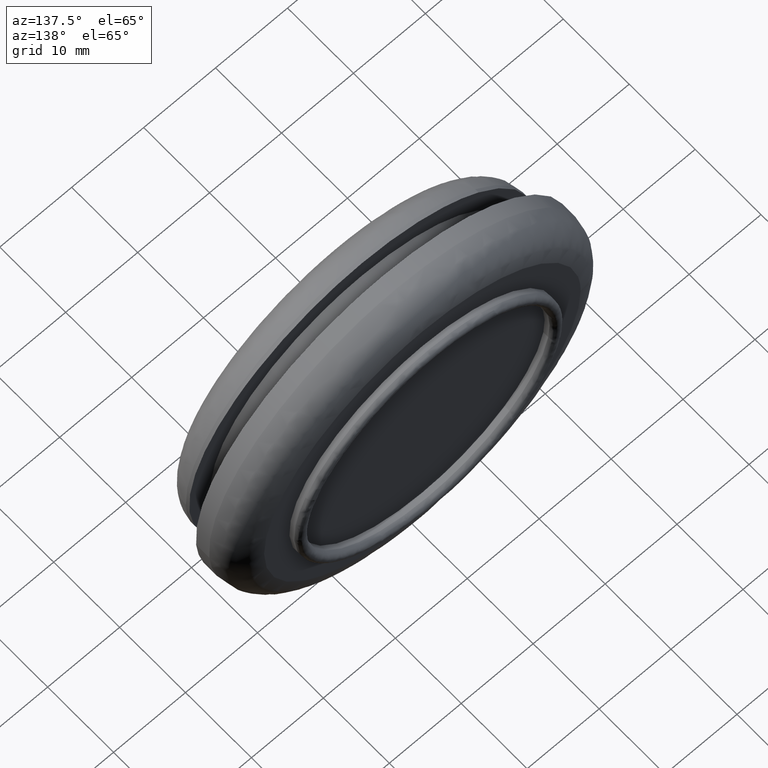
[diagram: clean part render]
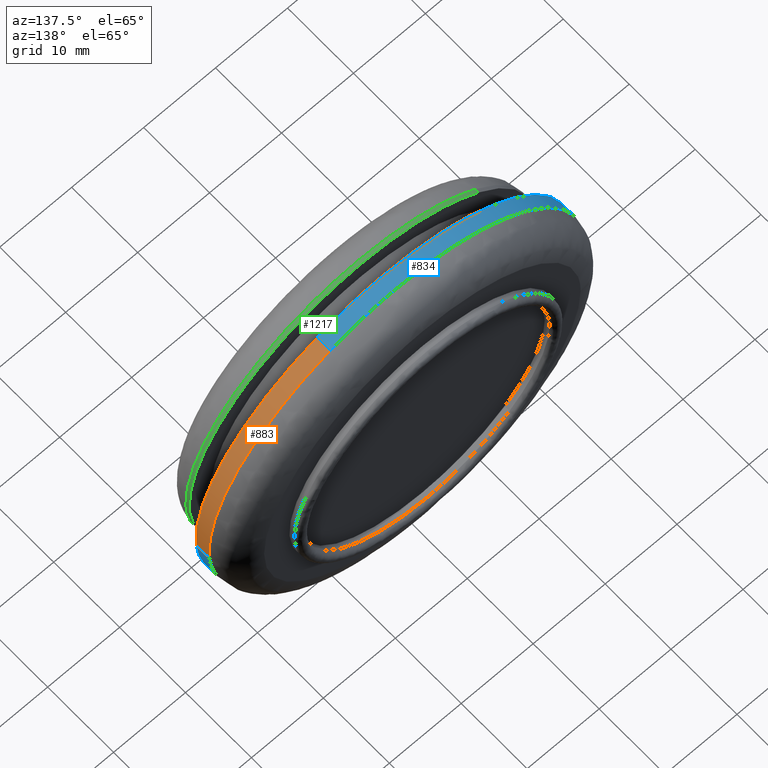
[diagram: same view with three faces highlighted in distinct colors, each labeled with its STEP entity id]
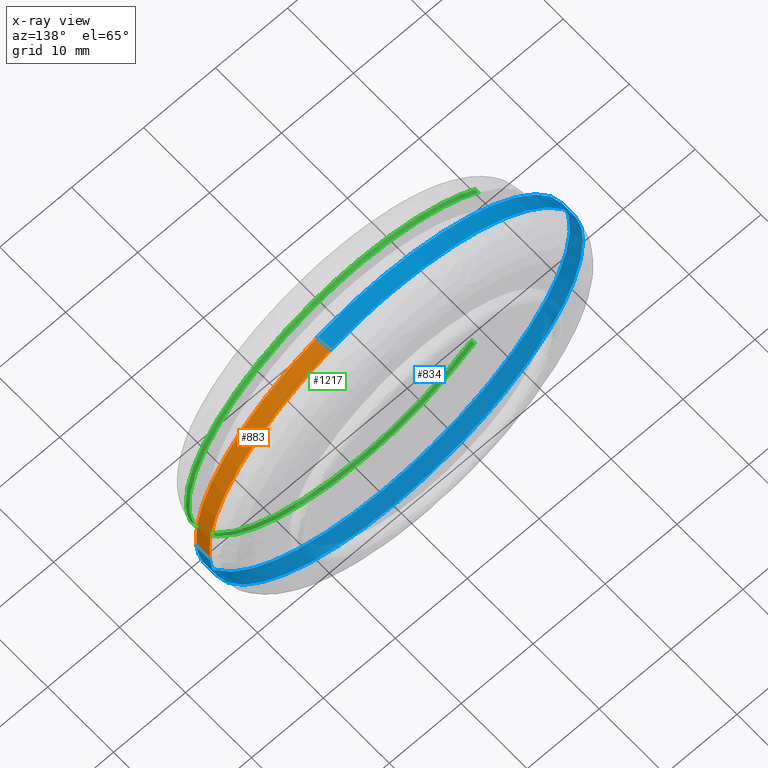
[diagram: x-ray of the same camera — body ghosted, the three highlighted faces saturated]
A machine part, auxiliary view with three faces highlighted in distinct colors.
The next image is the same camera in x-ray (body ghosted, the three faces saturated) — at least one of them is partly hidden behind the body in this view.
Their STEP definitions:

[orange] entity #883 — the highlighted face is a freeform B-spline surface patch.
#696=CARTESIAN_POINT('',(9.142066125791089,9.199999999999770,24.339733502067379));
#697=VERTEX_POINT('',#696);
#758=CARTESIAN_POINT('',(25.951505774424589,9.200000000000223,-1.587245425172213));
#759=VERTEX_POINT('',#758);
#773=CARTESIAN_POINT('',(25.951505762184439,7.199999999999790,-1.587245625301178));
#774=VERTEX_POINT('',#773);
#775=CARTESIAN_POINT('',(25.951505774424589,9.200000000000223,-1.587245425172213));
#776=CARTESIAN_POINT('',(25.951505762184439,7.199999999999790,-1.587245625301178));
#777=QUASI_UNIFORM_CURVE('',1,(#775,#776),.UNSPECIFIED.,.F.,.U.);
#778=EDGE_CURVE('',#759,#774,#777,.T.);
#812=CARTESIAN_POINT('',(9.142066140340663,7.199999999999790,24.339733496602520));
#813=VERTEX_POINT('',#812);
#827=CARTESIAN_POINT('',(9.142066125791089,9.199999999999770,24.339733502067379));
#828=CARTESIAN_POINT('',(9.142066140340663,7.199999999999790,24.339733496602520));
#829=QUASI_UNIFORM_CURVE('',1,(#827,#828),.UNSPECIFIED.,.F.,.U.);
#830=EDGE_CURVE('',#697,#813,#829,.T.);
#835=CARTESIAN_POINT('',(25.951504758968529,9.250000000028628,-1.587262027906267));
#836=CARTESIAN_POINT('',(27.124167794602876,9.250000000028626,17.585609126879710));
#837=CARTESIAN_POINT('',(9.142067334180860,9.250000000028628,24.339733048193093));
#838=CARTESIAN_POINT('',(25.951504758968529,7.148749999999068,-1.587262027906267));
#839=CARTESIAN_POINT('',(27.124167794602876,7.148749999999068,17.585609126879710));
#840=CARTESIAN_POINT('',(9.142067334180860,7.148749999999069,24.339733048193093));
#848=(BOUNDED_SURFACE()B_SPLINE_SURFACE(2,1,((#835,#838),(#836,#839),(#837,#840)),.UNSPECIFIED.,.F.,.F.,.U.)B_SPLINE_SURFACE_WITH_KNOTS((3,3),(2,2),(0.0,34.227666821052793),(0.0,2.101250000029560),.UNSPECIFIED.)GEOMETRIC_REPRESENTATION_ITEM()RATIONAL_B_SPLINE_SURFACE(((1.0,1.0),(0.765685424949238,0.765685424949238),(0.906274169979695,0.906274169979695)))REPRESENTATION_ITEM('')SURFACE());
#849=CARTESIAN_POINT('',(25.951505774424593,9.200000000000223,-1.587245425172213));
#850=CARTESIAN_POINT('',(26.000000000000007,9.199999999999781,-0.794363521120460));
#851=CARTESIAN_POINT('',(26.0,9.199999999999781,-2.939055E-016));
#852=CARTESIAN_POINT('',(26.000000000000007,9.199999999999781,18.007850443070854));
#853=CARTESIAN_POINT('',(9.142066125791109,9.199999999999779,24.339733502067414));
#861=(BOUNDED_CURVE()B_SPLINE_CURVE(2,(#849,#850,#851,#852,#853),.UNSPECIFIED.,.F.,.U.)B_SPLINE_CURVE_WITH_KNOTS((3,2,3),(0.239333072630507,0.250000000000000,0.440284178740616),.UNSPECIFIED.)CURVE()GEOMETRIC_REPRESENTATION_ITEM()RATIONAL_B_SPLINE_CURVE((0.976072278256969,0.987502917231600,1.0,0.777068217597547,0.893499564232153))REPRESENTATION_ITEM(''));
#862=EDGE_CURVE('',#759,#697,#861,.T.);
#863=ORIENTED_EDGE('',*,*,#862,.T.);
#864=ORIENTED_EDGE('',*,*,#830,.T.);
#865=CARTESIAN_POINT('',(25.951505762184439,7.199999999999791,-1.587245625301177));
#866=CARTESIAN_POINT('',(26.0,7.199999999999791,-0.794363621465503));
#867=CARTESIAN_POINT('',(26.0,7.199999999999790,-2.939055E-016));
#868=CARTESIAN_POINT('',(26.000000000000007,7.199999999999791,18.007850431572031));
#869=CARTESIAN_POINT('',(9.142066140340678,7.199999999999789,24.339733496602555));
#877=(BOUNDED_CURVE()B_SPLINE_CURVE(2,(#865,#866,#867,#868,#869),.UNSPECIFIED.,.F.,.U.)B_SPLINE_CURVE_WITH_KNOTS((3,2,3),(0.239333071299887,0.250000000000000,0.440284178646198),.UNSPECIFIED.)CURVE()GEOMETRIC_REPRESENTATION_ITEM()RATIONAL_B_SPLINE_CURVE((0.976072275405192,0.987502915672681,1.0,0.777068217708164,0.893499564116609))REPRESENTATION_ITEM(''));
#878=EDGE_CURVE('',#774,#813,#877,.T.);
#879=ORIENTED_EDGE('',*,*,#878,.F.);
#880=ORIENTED_EDGE('',*,*,#778,.F.);
#881=EDGE_LOOP('',(#863,#864,#879,#880));
#882=FACE_OUTER_BOUND('',#881,.T.);
#883=ADVANCED_FACE('',(#882),#848,.T.);

[blue] entity #834 — the highlighted face is a freeform B-spline surface patch.
#670=CARTESIAN_POINT('',(9.142067334180860,9.250000000028628,24.339733048193093));
#671=CARTESIAN_POINT('',(5.485725744600599,9.250000000028628,25.713064503493914));
#672=CARTESIAN_POINT('',(1.587262027906267,9.250000000028628,25.951504758968529));
#673=CARTESIAN_POINT('',(-24.364242731062269,9.250000000028628,27.538766786874792));
#674=CARTESIAN_POINT('',(-25.951504758968529,9.250000000028628,1.587262027906267));
#675=CARTESIAN_POINT('',(-27.538766786874792,9.250000000028628,-24.364242731062269));
#676=CARTESIAN_POINT('',(-1.587262027906267,9.250000000028628,-25.951504758968529));
#677=CARTESIAN_POINT('',(24.364242731062269,9.250000000028628,-27.538766786874792));
#678=CARTESIAN_POINT('',(25.951504758968529,9.250000000028628,-1.587262027906267));
#679=CARTESIAN_POINT('',(9.142067334180860,7.148749999999069,24.339733048193093));
#680=CARTESIAN_POINT('',(5.485725744600599,7.148749999999069,25.713064503493914));
#681=CARTESIAN_POINT('',(1.587262027906267,7.148749999999068,25.951504758968529));
#682=CARTESIAN_POINT('',(-24.364242731062269,7.148749999999069,27.538766786874792));
#683=CARTESIAN_POINT('',(-25.951504758968529,7.148749999999068,1.587262027906267));
#684=CARTESIAN_POINT('',(-27.538766786874792,7.148749999999069,-24.364242731062269));
#685=CARTESIAN_POINT('',(-1.587262027906267,7.148749999999068,-25.951504758968529));
#686=CARTESIAN_POINT('',(24.364242731062269,7.148749999999069,-27.538766786874792));
#687=CARTESIAN_POINT('',(25.951504758968529,7.148749999999068,-1.587262027906267));
#695=(BOUNDED_SURFACE()B_SPLINE_SURFACE(2,1,((#670,#679),(#671,#680),(#672,#681),(#673,#682),(#674,#683),(#675,#684),(#676,#685),(#677,#686),(#678,#687)),.UNSPECIFIED.,.F.,.F.,.U.)B_SPLINE_SURFACE_WITH_KNOTS((3,2,2,2,3),(2,2),(0.0,8.615642097360375,51.693852584162251,94.772063070964137,137.850273557766000),(0.0,2.101250000029560),.UNSPECIFIED.)GEOMETRIC_REPRESENTATION_ITEM()RATIONAL_B_SPLINE_SURFACE(((0.906274169979695,0.906274169979695),(0.941421356237309,0.941421356237309),(1.0,1.0),(0.707106781186548,0.707106781186548),(1.0,1.0),(0.707106781186548,0.707106781186548),(1.0,1.0),(0.707106781186548,0.707106781186548),(1.0,1.0)))REPRESENTATION_ITEM('')SURFACE());
#696=CARTESIAN_POINT('',(9.142066125791089,9.199999999999770,24.339733502067379));
#697=VERTEX_POINT('',#696);
#698=CARTESIAN_POINT('',(0.0,9.199999999999781,26.0));
#699=VERTEX_POINT('',#698);
#700=CARTESIAN_POINT('',(9.142066125791109,9.199999999999779,24.339733502067414));
#701=CARTESIAN_POINT('',(4.721791371041068,9.199999999999779,26.000000000000004));
#702=CARTESIAN_POINT('',(0.0,9.199999999999781,26.0));
#710=(BOUNDED_CURVE()B_SPLINE_CURVE(2,(#700,#701,#702),.UNSPECIFIED.,.F.,.U.)B_SPLINE_CURVE_WITH_KNOTS((3,3),(0.440284178740616,0.500000000000000),.UNSPECIFIED.)CURVE()GEOMETRIC_REPRESENTATION_ITEM()RATIONAL_B_SPLINE_CURVE((0.893499564232153,0.930038563589001,1.0))REPRESENTATION_ITEM(''));
#711=EDGE_CURVE('',#697,#699,#710,.T.);
#712=ORIENTED_EDGE('',*,*,#711,.T.);
#713=CARTESIAN_POINT('',(-25.999999999999989,9.200000000026588,1.921379E-017));
#714=VERTEX_POINT('',#713);
#715=CARTESIAN_POINT('',(0.0,9.199999999999781,26.0));
#716=CARTESIAN_POINT('',(-25.999999999999876,9.199999999999781,26.0));
#717=CARTESIAN_POINT('',(-25.999999999999993,9.200000000026588,1.921379E-017));
#725=(BOUNDED_CURVE()B_SPLINE_CURVE(2,(#715,#716,#717),.UNSPECIFIED.,.F.,.U.)B_SPLINE_CURVE_WITH_KNOTS((3,3),(0.500000000000000,0.749999999999999),.UNSPECIFIED.)CURVE()GEOMETRIC_REPRESENTATION_ITEM()RATIONAL_B_SPLINE_CURVE((1.0,0.707106781186548,0.999999999999998))REPRESENTATION_ITEM(''));
#726=EDGE_CURVE('',#699,#714,#725,.T.);
#727=ORIENTED_EDGE('',*,*,#726,.T.);
#728=CARTESIAN_POINT('',(-9.185851133165627,9.200000000027924,-24.323242772280992));
#729=VERTEX_POINT('',#728);
#730=CARTESIAN_POINT('',(-25.999999999999989,9.200000000026588,1.921379E-017));
#731=CARTESIAN_POINT('',(-26.000000000000004,9.199999999999781,-17.973256059255309));
#732=CARTESIAN_POINT('',(-9.185851133165627,9.200000000027924,-24.323242772280988));
#740=(BOUNDED_CURVE()B_SPLINE_CURVE(2,(#730,#731,#732),.UNSPECIFIED.,.F.,.U.)B_SPLINE_CURVE_WITH_KNOTS((3,3),(0.750000000000000,0.939999999999961),.UNSPECIFIED.)CURVE()GEOMETRIC_REPRESENTATION_ITEM()RATIONAL_B_SPLINE_CURVE((1.0,0.777401153701821,0.893152553776805))REPRESENTATION_ITEM(''));
#741=EDGE_CURVE('',#714,#729,#740,.T.);
#742=ORIENTED_EDGE('',*,*,#741,.T.);
#743=CARTESIAN_POINT('',(0.0,9.199999999999781,-26.0));
#744=VERTEX_POINT('',#743);
#745=CARTESIAN_POINT('',(-9.185851133165627,9.200000000027924,-24.323242772280988));
#746=CARTESIAN_POINT('',(-4.745960639761153,9.199999999999781,-26.0));
#747=CARTESIAN_POINT('',(0.0,9.199999999999781,-26.0));
#755=(BOUNDED_CURVE()B_SPLINE_CURVE(2,(#745,#746,#747),.UNSPECIFIED.,.F.,.U.)B_SPLINE_CURVE_WITH_KNOTS((3,3),(0.939999999999961,1.0),.UNSPECIFIED.)CURVE()GEOMETRIC_REPRESENTATION_ITEM()RATIONAL_B_SPLINE_CURVE((0.893152553776805,0.929705627484725,1.0))REPRESENTATION_ITEM(''));
#756=EDGE_CURVE('',#729,#744,#755,.T.);
#757=ORIENTED_EDGE('',*,*,#756,.T.);
#758=CARTESIAN_POINT('',(25.951505774424589,9.200000000000223,-1.587245425172213));
#759=VERTEX_POINT('',#758);
#760=CARTESIAN_POINT('',(0.0,9.199999999999781,-26.0));
#761=CARTESIAN_POINT('',(24.458373416270785,9.199999999999781,-25.999999999999996));
#762=CARTESIAN_POINT('',(25.951505774424593,9.200000000000223,-1.587245425172213));
#770=(BOUNDED_CURVE()B_SPLINE_CURVE(2,(#760,#761,#762),.UNSPECIFIED.,.F.,.U.)B_SPLINE_CURVE_WITH_KNOTS((3,3),(0.0,0.239333072630507),.UNSPECIFIED.)CURVE()GEOMETRIC_REPRESENTATION_ITEM()RATIONAL_B_SPLINE_CURVE((1.0,0.719603863954947,0.976072278256969))REPRESENTATION_ITEM(''));
#771=EDGE_CURVE('',#744,#759,#770,.T.);
#772=ORIENTED_EDGE('',*,*,#771,.T.);
#773=CARTESIAN_POINT('',(25.951505762184439,7.199999999999790,-1.587245625301178));
#774=VERTEX_POINT('',#773);
#775=CARTESIAN_POINT('',(25.951505774424589,9.200000000000223,-1.587245425172213));
#776=CARTESIAN_POINT('',(25.951505762184439,7.199999999999790,-1.587245625301178));
#777=QUASI_UNIFORM_CURVE('',1,(#775,#776),.UNSPECIFIED.,.F.,.U.);
#778=EDGE_CURVE('',#759,#774,#777,.T.);
#779=ORIENTED_EDGE('',*,*,#778,.T.);
#780=CARTESIAN_POINT('',(0.0,7.199999999999790,-26.0));
#781=VERTEX_POINT('',#780);
#782=CARTESIAN_POINT('',(0.0,7.199999999999790,-26.0));
#783=CARTESIAN_POINT('',(24.458373227303884,7.199999999999790,-25.999999999999996));
#784=CARTESIAN_POINT('',(25.951505762184439,7.199999999999791,-1.587245625301177));
#792=(BOUNDED_CURVE()B_SPLINE_CURVE(2,(#782,#783,#784),.UNSPECIFIED.,.F.,.U.)B_SPLINE_CURVE_WITH_KNOTS((3,3),(0.0,0.239333071299887),.UNSPECIFIED.)CURVE()GEOMETRIC_REPRESENTATION_ITEM()RATIONAL_B_SPLINE_CURVE((1.0,0.719603865513867,0.976072275405192))REPRESENTATION_ITEM(''));
#793=EDGE_CURVE('',#781,#774,#792,.T.);
#794=ORIENTED_EDGE('',*,*,#793,.F.);
#795=CARTESIAN_POINT('',(0.0,7.199999999999790,26.0));
#796=VERTEX_POINT('',#795);
#797=CARTESIAN_POINT('',(0.0,7.199999999999790,26.0));
#798=CARTESIAN_POINT('',(-26.000000000000007,7.199999999999789,26.000000000000007));
#799=CARTESIAN_POINT('',(-26.0,7.199999999999790,-2.939055E-016));
#800=CARTESIAN_POINT('',(-26.000000000000007,7.199999999999789,-26.000000000000007));
#801=CARTESIAN_POINT('',(0.0,7.199999999999790,-26.0));
#809=(BOUNDED_CURVE()B_SPLINE_CURVE(2,(#797,#798,#799,#800,#801),.UNSPECIFIED.,.F.,.U.)B_SPLINE_CURVE_WITH_KNOTS((3,2,3),(0.500000000000000,0.750000000000000,1.0),.UNSPECIFIED.)CURVE()GEOMETRIC_REPRESENTATION_ITEM()RATIONAL_B_SPLINE_CURVE((1.0,0.707106781186547,1.0,0.707106781186547,1.0))REPRESENTATION_ITEM(''));
#810=EDGE_CURVE('',#796,#781,#809,.T.);
#811=ORIENTED_EDGE('',*,*,#810,.F.);
#812=CARTESIAN_POINT('',(9.142066140340663,7.199999999999790,24.339733496602520));
#813=VERTEX_POINT('',#812);
#814=CARTESIAN_POINT('',(9.142066140340678,7.199999999999789,24.339733496602555));
#815=CARTESIAN_POINT('',(4.721791379068379,7.199999999999790,26.000000000000004));
#816=CARTESIAN_POINT('',(0.0,7.199999999999790,26.0));
#824=(BOUNDED_CURVE()B_SPLINE_CURVE(2,(#814,#815,#816),.UNSPECIFIED.,.F.,.U.)B_SPLINE_CURVE_WITH_KNOTS((3,3),(0.440284178646198,0.500000000000000),.UNSPECIFIED.)CURVE()GEOMETRIC_REPRESENTATION_ITEM()RATIONAL_B_SPLINE_CURVE((0.893499564116609,0.930038563478383,1.0))REPRESENTATION_ITEM(''));
#825=EDGE_CURVE('',#813,#796,#824,.T.);
#826=ORIENTED_EDGE('',*,*,#825,.F.);
#827=CARTESIAN_POINT('',(9.142066125791089,9.199999999999770,24.339733502067379));
#828=CARTESIAN_POINT('',(9.142066140340663,7.199999999999790,24.339733496602520));
#829=QUASI_UNIFORM_CURVE('',1,(#827,#828),.UNSPECIFIED.,.F.,.U.);
#830=EDGE_CURVE('',#697,#813,#829,.T.);
#831=ORIENTED_EDGE('',*,*,#830,.F.);
#832=EDGE_LOOP('',(#712,#727,#742,#757,#772,#779,#794,#811,#826,#831));
#833=FACE_OUTER_BOUND('',#832,.T.);
#834=ADVANCED_FACE('',(#833),#695,.T.);

[green] entity #1217 — the highlighted face is a freeform B-spline surface patch.
#1070=CARTESIAN_POINT('',(-15.704151768064911,4.012500000004274,-18.148818618455127));
#1071=CARTESIAN_POINT('',(0.457220591482891,4.012500000004275,-32.133235436443712));
#1072=CARTESIAN_POINT('',(16.214164982775849,4.012500000004275,-17.694656083442968));
#1073=CARTESIAN_POINT('',(33.908821066218827,4.012500000004275,-1.480491100667127));
#1074=CARTESIAN_POINT('',(17.694656083442968,4.012500000004275,16.214164982775849));
#1075=CARTESIAN_POINT('',(1.480491100667127,4.012500000004275,33.908821066218827));
#1076=CARTESIAN_POINT('',(-16.214164982775849,4.012500000004275,17.694656083442968));
#1077=CARTESIAN_POINT('',(-15.704151768064911,3.487187499824632,-18.148818618455127));
#1078=CARTESIAN_POINT('',(0.457220591482891,3.487187499824632,-32.133235436443712));
#1079=CARTESIAN_POINT('',(16.214164982775849,3.487187499824632,-17.694656083442968));
#1080=CARTESIAN_POINT('',(33.908821066218827,3.487187499824632,-1.480491100667127));
#1081=CARTESIAN_POINT('',(17.694656083442968,3.487187499824632,16.214164982775849));
#1082=CARTESIAN_POINT('',(1.480491100667127,3.487187499824632,33.908821066218827));
#1083=CARTESIAN_POINT('',(-16.214164982775849,3.487187499824632,17.694656083442968));
#1091=(BOUNDED_SURFACE()B_SPLINE_SURFACE(2,1,((#1070,#1077),(#1071,#1078),(#1072,#1079),(#1073,#1080),(#1074,#1081),(#1075,#1082),(#1076,#1083)),.UNSPECIFIED.,.F.,.F.,.U.)B_SPLINE_SURFACE_WITH_KNOTS((3,2,2,3),(2,2),(0.0,36.583341828791752,76.347843816608872,116.112345804426000),(0.0,1.0),.UNSPECIFIED.)GEOMETRIC_REPRESENTATION_ITEM()RATIONAL_B_SPLINE_SURFACE(((0.956886118190660,0.956886118190660),(0.730538238691624,0.730538238691624),(1.0,1.0),(0.707106781186548,0.707106781186548),(1.0,1.0),(0.707106781186548,0.707106781186548),(1.0,1.0)))REPRESENTATION_ITEM('')SURFACE());
#1092=CARTESIAN_POINT('',(-15.704150975296370,4.000000000000154,-18.148819304436781));
#1093=VERTEX_POINT('',#1092);
#1094=CARTESIAN_POINT('',(0.0,4.0,-24.0));
#1095=VERTEX_POINT('',#1094);
#1096=CARTESIAN_POINT('',(-15.704150975296365,4.000000000000154,-18.148819304436781));
#1097=CARTESIAN_POINT('',(-8.942115808388468,4.000000000000000,-23.999999999999996));
#1098=CARTESIAN_POINT('',(0.0,4.0,-24.0));
#1106=(BOUNDED_CURVE()B_SPLINE_CURVE(2,(#1096,#1097,#1098),.UNSPECIFIED.,.F.,.U.)B_SPLINE_CURVE_WITH_KNOTS((3,3),(0.885882126548224,1.0),.UNSPECIFIED.)CURVE()GEOMETRIC_REPRESENTATION_ITEM()RATIONAL_B_SPLINE_CURVE((0.854663298228968,0.866302594882253,1.0))REPRESENTATION_ITEM(''));
#1107=EDGE_CURVE('',#1093,#1095,#1106,.T.);
#1108=ORIENTED_EDGE('',*,*,#1107,.T.);
#1109=CARTESIAN_POINT('',(0.0,4.0,24.0));
#1110=VERTEX_POINT('',#1109);
#1111=CARTESIAN_POINT('',(0.0,4.0,-24.0));
#1112=CARTESIAN_POINT('',(23.999999999999996,4.000000000000000,-23.999999999999996));
#1113=CARTESIAN_POINT('',(24.0,4.0,-2.939055E-016));
#1114=CARTESIAN_POINT('',(23.999999999999996,4.000000000000000,23.999999999999996));
#1115=CARTESIAN_POINT('',(0.0,4.0,24.0));
#1123=(BOUNDED_CURVE()B_SPLINE_CURVE(2,(#1111,#1112,#1113,#1114,#1115),.UNSPECIFIED.,.F.,.U.)B_SPLINE_CURVE_WITH_KNOTS((3,2,3),(0.0,0.250000000000000,0.500000000000000),.UNSPECIFIED.)CURVE()GEOMETRIC_REPRESENTATION_ITEM()RATIONAL_B_SPLINE_CURVE((1.0,0.707106781186548,1.0,0.707106781186548,1.0))REPRESENTATION_ITEM(''));
#1124=EDGE_CURVE('',#1095,#1110,#1123,.T.);
#1125=ORIENTED_EDGE('',*,*,#1124,.T.);
#1126=CARTESIAN_POINT('',(-16.214164032176718,4.0,17.694656954506499));
#1127=VERTEX_POINT('',#1126);
#1128=CARTESIAN_POINT('',(0.0,4.0,24.0));
#1129=CARTESIAN_POINT('',(-9.333088822312083,4.0,24.0));
#1130=CARTESIAN_POINT('',(-16.214164032176736,4.0,17.694656954506534));
#1138=(BOUNDED_CURVE()B_SPLINE_CURVE(2,(#1128,#1129,#1130),.UNSPECIFIED.,.F.,.U.)B_SPLINE_CURVE_WITH_KNOTS((3,3),(0.500000000000000,0.618415200974131),.UNSPECIFIED.)CURVE()GEOMETRIC_REPRESENTATION_ITEM()RATIONAL_B_SPLINE_CURVE((1.0,0.861267962520980,0.853959781838990))REPRESENTATION_ITEM(''));
#1139=EDGE_CURVE('',#1110,#1127,#1138,.T.);
#1140=ORIENTED_EDGE('',*,*,#1139,.T.);
#1141=CARTESIAN_POINT('',(-16.214163988861721,3.499999999953968,17.694656994196169));
#1142=VERTEX_POINT('',#1141);
#1143=CARTESIAN_POINT('',(-16.214164032176718,4.0,17.694656954506499));
#1144=CARTESIAN_POINT('',(-16.214163988861721,3.499999999953968,17.694656994196169));
#1145=QUASI_UNIFORM_CURVE('',1,(#1143,#1144),.UNSPECIFIED.,.F.,.U.);
#1146=EDGE_CURVE('',#1127,#1142,#1145,.T.);
#1147=ORIENTED_EDGE('',*,*,#1146,.T.);
#1148=CARTESIAN_POINT('',(0.0,3.499999999999800,24.0));
#1149=VERTEX_POINT('',#1148);
#1150=CARTESIAN_POINT('',(0.0,3.499999999999800,24.0));
#1151=CARTESIAN_POINT('',(-9.333088788494331,3.499999999999800,23.999999999999996));
#1152=CARTESIAN_POINT('',(-16.214163988861724,3.499999999953968,17.694656994196166));
#1160=(BOUNDED_CURVE()B_SPLINE_CURVE(2,(#1150,#1151,#1152),.UNSPECIFIED.,.F.,.U.)B_SPLINE_CURVE_WITH_KNOTS((3,3),(0.500000000000000,0.618415200604588),.UNSPECIFIED.)CURVE()GEOMETRIC_REPRESENTATION_ITEM()RATIONAL_B_SPLINE_CURVE((1.0,0.861267962953927,0.853959781884604))REPRESENTATION_ITEM(''));
#1161=EDGE_CURVE('',#1149,#1142,#1160,.T.);
#1162=ORIENTED_EDGE('',*,*,#1161,.F.);
#1163=CARTESIAN_POINT('',(23.992420542798961,3.499999999829014,-0.603122290649290));
#1164=VERTEX_POINT('',#1163);
#1165=CARTESIAN_POINT('',(23.992420542798961,3.499999999829014,-0.603122290649290));
#1166=CARTESIAN_POINT('',(24.000000000000004,3.499999999999800,-0.301608770970307));
#1167=CARTESIAN_POINT('',(24.0,3.499999999999800,-2.939055E-016));
#1168=CARTESIAN_POINT('',(23.999999999999996,3.499999999999800,23.999999999999996));
#1169=CARTESIAN_POINT('',(0.0,3.499999999999800,24.0));
#1177=(BOUNDED_CURVE()B_SPLINE_CURVE(2,(#1165,#1166,#1167,#1168,#1169),.UNSPECIFIED.,.F.,.U.)B_SPLINE_CURVE_WITH_KNOTS((3,2,3),(0.245579891769673,0.250000000000000,0.500000000000000),.UNSPECIFIED.)CURVE()GEOMETRIC_REPRESENTATION_ITEM()RATIONAL_B_SPLINE_CURVE((0.989826157681273,0.994821521091663,1.0,0.707106781186548,1.0))REPRESENTATION_ITEM(''));
#1178=EDGE_CURVE('',#1164,#1149,#1177,.T.);
#1179=ORIENTED_EDGE('',*,*,#1178,.F.);
#1180=CARTESIAN_POINT('',(0.0,3.499999999999800,-24.0));
#1181=VERTEX_POINT('',#1180);
#1182=CARTESIAN_POINT('',(0.0,3.499999999999800,-24.0));
#1183=CARTESIAN_POINT('',(23.404269028317632,3.499999999999800,-24.000000000000011));
#1184=CARTESIAN_POINT('',(23.992420542798964,3.499999999829014,-0.603122290649290));
#1192=(BOUNDED_CURVE()B_SPLINE_CURVE(2,(#1182,#1183,#1184),.UNSPECIFIED.,.F.,.U.)B_SPLINE_CURVE_WITH_KNOTS((3,3),(0.0,0.245579891769673),.UNSPECIFIED.)CURVE()GEOMETRIC_REPRESENTATION_ITEM()RATIONAL_B_SPLINE_CURVE((1.0,0.712285260094884,0.989826157681273))REPRESENTATION_ITEM(''));
#1193=EDGE_CURVE('',#1181,#1164,#1192,.T.);
#1194=ORIENTED_EDGE('',*,*,#1193,.F.);
#1195=CARTESIAN_POINT('',(-15.704150984848710,3.499999999999799,-18.148819296171151));
#1196=VERTEX_POINT('',#1195);
#1197=CARTESIAN_POINT('',(-15.704150984848734,3.499999999999800,-18.148819296171169));
#1198=CARTESIAN_POINT('',(-8.942115815581277,3.499999999999801,-23.999999999999996));
#1199=CARTESIAN_POINT('',(0.0,3.499999999999800,-24.0));
#1207=(BOUNDED_CURVE()B_SPLINE_CURVE(2,(#1197,#1198,#1199),.UNSPECIFIED.,.F.,.U.)B_SPLINE_CURVE_WITH_KNOTS((3,3),(0.885882126468703,1.0),.UNSPECIFIED.)CURVE()GEOMETRIC_REPRESENTATION_ITEM()RATIONAL_B_SPLINE_CURVE((0.854663298212747,0.866302594789088,1.0))REPRESENTATION_ITEM(''));
#1208=EDGE_CURVE('',#1196,#1181,#1207,.T.);
#1209=ORIENTED_EDGE('',*,*,#1208,.F.);
#1210=CARTESIAN_POINT('',(-15.704150975296370,4.000000000000154,-18.148819304436781));
#1211=CARTESIAN_POINT('',(-15.704150984848710,3.499999999999799,-18.148819296171151));
#1212=QUASI_UNIFORM_CURVE('',1,(#1210,#1211),.UNSPECIFIED.,.F.,.U.);
#1213=EDGE_CURVE('',#1093,#1196,#1212,.T.);
#1214=ORIENTED_EDGE('',*,*,#1213,.F.);
#1215=EDGE_LOOP('',(#1108,#1125,#1140,#1147,#1162,#1179,#1194,#1209,#1214));
#1216=FACE_OUTER_BOUND('',#1215,.T.);
#1217=ADVANCED_FACE('',(#1216),#1091,.T.);